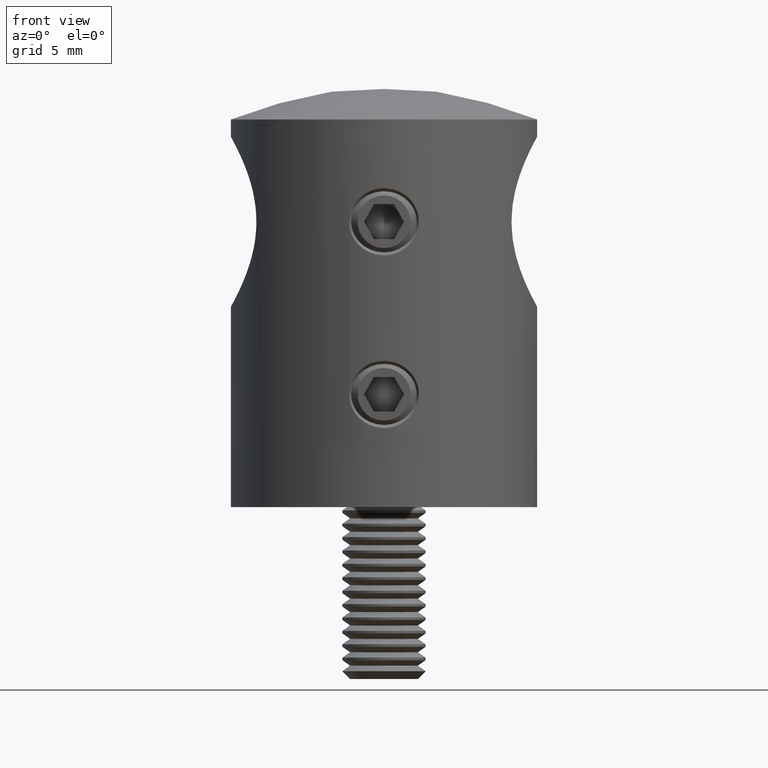
[diagram: clean part render]
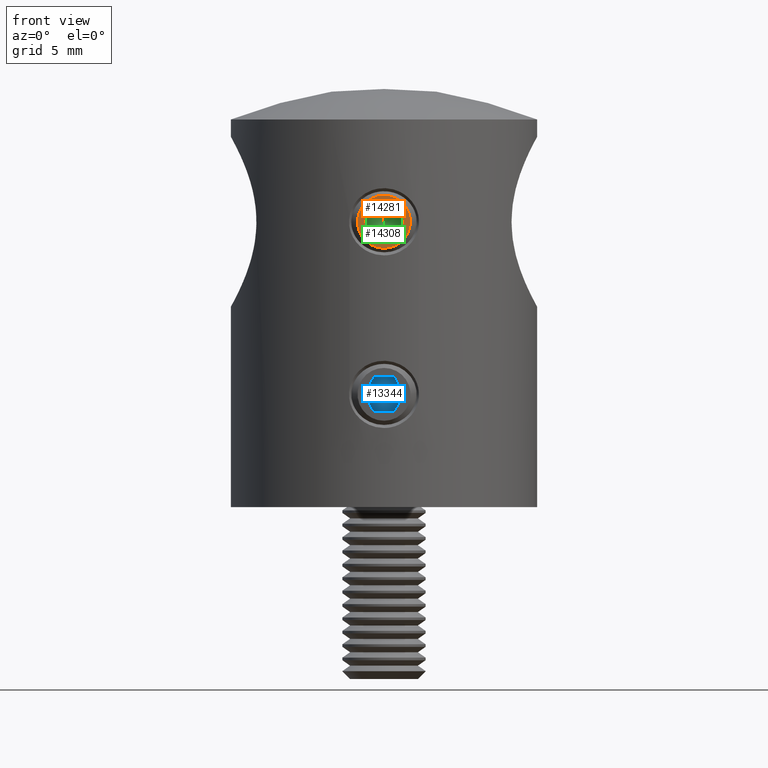
[diagram: same view with three faces highlighted in distinct colors, each labeled with its STEP entity id]
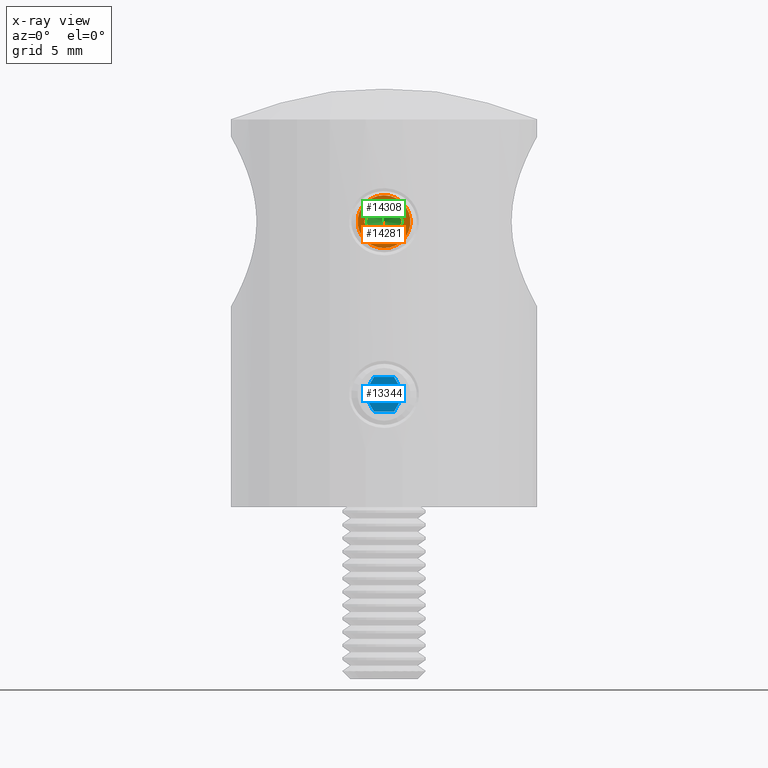
[diagram: x-ray of the same camera — body ghosted, the three highlighted faces saturated]
A machine part, front view with three faces highlighted in distinct colors.
The next image is the same camera in x-ray (body ghosted, the three faces saturated) — at least one of them is partly hidden behind the body in this view.
Their STEP definitions:

[orange] entity #14281 — the highlighted planar face has unit normal (-0, -1, 0).
#125 = DIRECTION ( 'NONE',  ( 0.0000000000000000000, 0.0000000000000000000, -1.000000000000000000 ) ) ;
#163 = DIRECTION ( 'NONE',  ( 0.0000000000000000000, 0.5000000000000000000, 0.8660254037844386000 ) ) ;
#687 = LINE ( 'NONE', #17989, #3373 ) ;
#895 = EDGE_LOOP ( 'NONE', ( #11720 ) ) ;
#1152 = FACE_BOUND ( 'NONE', #9463, .T. ) ;
#1289 = CARTESIAN_POINT ( 'NONE',  ( 5.000000000000000000, 0.7216878364870338300, 1.250000000000000400 ) ) ;
#1346 = CARTESIAN_POINT ( 'NONE',  ( 5.000000000000000000, 1.443375672974066100, 3.510950658916429000E-016 ) ) ;
#1714 = LINE ( 'NONE', #5509, #6843 ) ;
#1771 = CARTESIAN_POINT ( 'NONE',  ( 5.000000000000000000, 0.0000000000000000000, 0.0000000000000000000 ) ) ;
#2210 = FACE_OUTER_BOUND ( 'NONE', #895, .T. ) ;
#2440 = LINE ( 'NONE', #4784, #14092 ) ;
#3139 = CARTESIAN_POINT ( 'NONE',  ( 5.000000000000000000, -1.443375672974064100, 5.421010862427522200E-016 ) ) ;
#3243 = VECTOR ( 'NONE', #8235, 1000.000000000000200 ) ;
#3373 = VECTOR ( 'NONE', #16100, 1000.000000000000000 ) ;
#3385 = VECTOR ( 'NONE', #19239, 1000.000000000000000 ) ;
#4073 = CIRCLE ( 'NONE', #13066, 1.900000000000000100 ) ;
#4784 = CARTESIAN_POINT ( 'NONE',  ( 5.000000000000000000, -0.7216878364870317200, 1.250000000000000400 ) ) ;
#5055 = ORIENTED_EDGE ( 'NONE', *, *, #21640, .F. ) ;
#5109 = VERTEX_POINT ( 'NONE', #11507 ) ;
#5509 = CARTESIAN_POINT ( 'NONE',  ( 5.000000000000000000, 0.7216878364870340500, -1.249999999999998900 ) ) ;
#5520 = VERTEX_POINT ( 'NONE', #10801 ) ;
#6843 = VECTOR ( 'NONE', #163, 1000.000000000000200 ) ;
#6879 = EDGE_CURVE ( 'NONE', #16935, #22322, #12921, .T. ) ;
#7194 = ORIENTED_EDGE ( 'NONE', *, *, #12117, .F. ) ;
#7326 = CARTESIAN_POINT ( 'NONE',  ( 5.000000000000000000, 0.0000000000000000000, 0.0000000000000000000 ) ) ;
#8235 = DIRECTION ( 'NONE',  ( 0.0000000000000000000, -0.4999999999999998900, 0.8660254037844386000 ) ) ;
#9321 = ORIENTED_EDGE ( 'NONE', *, *, #10244, .F. ) ;
#9463 = EDGE_LOOP ( 'NONE', ( #10904, #13081, #10508, #7194, #9321, #5055 ) ) ;
#9552 = CARTESIAN_POINT ( 'NONE',  ( 5.000000000000000000, -0.7216878364870327200, -1.249999999999999300 ) ) ;
#9745 = CARTESIAN_POINT ( 'NONE',  ( 5.000000000000000000, 1.443375672974066100, 3.510950658916429000E-016 ) ) ;
#10189 = DIRECTION ( 'NONE',  ( 0.0000000000000000000, -0.4999999999999998900, -0.8660254037844386000 ) ) ;
#10244 = EDGE_CURVE ( 'NONE', #21003, #5109, #687, .T. ) ;
#10253 = DIRECTION ( 'NONE',  ( 1.000000000000000000, 0.0000000000000000000, 0.0000000000000000000 ) ) ;
#10508 = ORIENTED_EDGE ( 'NONE', *, *, #16008, .F. ) ;
#10801 = CARTESIAN_POINT ( 'NONE',  ( 5.000000000000000000, 0.0000000000000000000, -1.900000000000000100 ) ) ;
#10904 = ORIENTED_EDGE ( 'NONE', *, *, #18448, .F. ) ;
#11507 = CARTESIAN_POINT ( 'NONE',  ( 5.000000000000000000, 0.7216878364870340500, -1.249999999999998900 ) ) ;
#11720 = ORIENTED_EDGE ( 'NONE', *, *, #17663, .T. ) ;
#12117 = EDGE_CURVE ( 'NONE', #5109, #21463, #1714, .T. ) ;
#12416 = VERTEX_POINT ( 'NONE', #3139 ) ;
#12921 = LINE ( 'NONE', #1289, #18058 ) ;
#13066 = AXIS2_PLACEMENT_3D ( 'NONE', #1771, #10253, #125 ) ;
#13081 = ORIENTED_EDGE ( 'NONE', *, *, #6879, .F. ) ;
#14092 = VECTOR ( 'NONE', #10189, 1000.000000000000200 ) ;
#14281 = ADVANCED_FACE ( 'NONE', ( #1152, #2210 ), #17985, .T. ) ;
#14645 = LINE ( 'NONE', #9745, #3243 ) ;
#15211 = AXIS2_PLACEMENT_3D ( 'NONE', #7326, #16096, #16245 ) ;
#15716 = CARTESIAN_POINT ( 'NONE',  ( 5.000000000000000000, -1.443375672974063900, 4.248569400808785300E-016 ) ) ;
#15980 = CARTESIAN_POINT ( 'NONE',  ( 5.000000000000000000, -0.7216878364870317200, 1.250000000000000400 ) ) ;
#16008 = EDGE_CURVE ( 'NONE', #21463, #16935, #14645, .T. ) ;
#16096 = DIRECTION ( 'NONE',  ( 1.000000000000000000, 0.0000000000000000000, 0.0000000000000000000 ) ) ;
#16100 = DIRECTION ( 'NONE',  ( 0.0000000000000000000, 1.000000000000000000, 3.004629197474313600E-016 ) ) ;
#16245 = DIRECTION ( 'NONE',  ( 0.0000000000000000000, 0.0000000000000000000, -1.000000000000000000 ) ) ;
#16935 = VERTEX_POINT ( 'NONE', #19809 ) ;
#17663 = EDGE_CURVE ( 'NONE', #5520, #5520, #4073, .T. ) ;
#17985 = PLANE ( 'NONE',  #15211 ) ;
#17989 = CARTESIAN_POINT ( 'NONE',  ( 5.000000000000000000, -0.7216878364870327200, -1.249999999999999300 ) ) ;
#18058 = VECTOR ( 'NONE', #22101, 1000.000000000000000 ) ;
#18448 = EDGE_CURVE ( 'NONE', #22322, #12416, #2440, .T. ) ;
#19239 = DIRECTION ( 'NONE',  ( 0.0000000000000000000, 0.4999999999999995000, -0.8660254037844389300 ) ) ;
#19809 = CARTESIAN_POINT ( 'NONE',  ( 5.000000000000000000, 0.7216878364870338300, 1.250000000000000400 ) ) ;
#20982 = LINE ( 'NONE', #15716, #3385 ) ;
#21003 = VERTEX_POINT ( 'NONE', #9552 ) ;
#21463 = VERTEX_POINT ( 'NONE', #1346 ) ;
#21640 = EDGE_CURVE ( 'NONE', #12416, #21003, #20982, .T. ) ;
#22101 = DIRECTION ( 'NONE',  ( 0.0000000000000000000, -1.000000000000000000, 0.0000000000000000000 ) ) ;
#22322 = VERTEX_POINT ( 'NONE', #15980 ) ;

[blue] entity #13344 — the highlighted planar face has unit normal (0, -1, 0).
#344 = LINE ( 'NONE', #12696, #1133 ) ;
#1133 = VECTOR ( 'NONE', #16021, 1000.000000000000100 ) ;
#1794 = LINE ( 'NONE', #3753, #5854 ) ;
#3153 = ORIENTED_EDGE ( 'NONE', *, *, #15414, .T. ) ;
#3636 = PLANE ( 'NONE',  #20685 ) ;
#3753 = CARTESIAN_POINT ( 'NONE',  ( 3.000000000000000000, -1.443375672974064500, -3.918605484130491800E-016 ) ) ;
#4233 = DIRECTION ( 'NONE',  ( 0.0000000000000000000, 0.5000000000000001100, 0.8660254037844386000 ) ) ;
#4547 = DIRECTION ( 'NONE',  ( 0.0000000000000000000, -0.5000000000000001100, -0.8660254037844386000 ) ) ;
#4886 = CARTESIAN_POINT ( 'NONE',  ( 3.000000000000000000, 0.7216878364870326100, 1.250000000000000000 ) ) ;
#4946 = EDGE_LOOP ( 'NONE', ( #16603, #14391, #21229, #3153, #18370, #13923 ) ) ;
#5854 = VECTOR ( 'NONE', #17678, 1000.000000000000100 ) ;
#7053 = EDGE_CURVE ( 'NONE', #10747, #13678, #11564, .T. ) ;
#7076 = VERTEX_POINT ( 'NONE', #8689 ) ;
#7499 = VERTEX_POINT ( 'NONE', #14713 ) ;
#7625 = LINE ( 'NONE', #21490, #8160 ) ;
#8160 = VECTOR ( 'NONE', #4547, 1000.000000000000100 ) ;
#8265 = LINE ( 'NONE', #17504, #18535 ) ;
#8689 = CARTESIAN_POINT ( 'NONE',  ( 3.000000000000000000, 1.443375672974064800, -2.114391246060425900E-016 ) ) ;
#8888 = CARTESIAN_POINT ( 'NONE',  ( 3.000000000000000000, -0.7216878364870333900, -1.249999999999999800 ) ) ;
#9253 = DIRECTION ( 'NONE',  ( 0.0000000000000000000, -1.000000000000000000, 0.0000000000000000000 ) ) ;
#10747 = VERTEX_POINT ( 'NONE', #8888 ) ;
#10863 = VECTOR ( 'NONE', #4233, 1000.000000000000000 ) ;
#11277 = CARTESIAN_POINT ( 'NONE',  ( 3.000000000000000000, 0.7216878364870326100, -1.249999999999999800 ) ) ;
#11564 = LINE ( 'NONE', #18731, #21809 ) ;
#12696 = CARTESIAN_POINT ( 'NONE',  ( 3.000000000000000000, 1.443375672974064800, -2.114391246060425900E-016 ) ) ;
#13033 = LINE ( 'NONE', #11277, #10863 ) ;
#13344 = ADVANCED_FACE ( 'NONE', ( #16851 ), #3636, .T. ) ;
#13678 = VERTEX_POINT ( 'NONE', #21464 ) ;
#13864 = CARTESIAN_POINT ( 'NONE',  ( 3.000000000000000000, -2.165063509461096400, -1.249999999999999800 ) ) ;
#13923 = ORIENTED_EDGE ( 'NONE', *, *, #22368, .T. ) ;
#14365 = EDGE_CURVE ( 'NONE', #7076, #15828, #344, .T. ) ;
#14391 = ORIENTED_EDGE ( 'NONE', *, *, #20423, .T. ) ;
#14713 = CARTESIAN_POINT ( 'NONE',  ( 3.000000000000000000, -1.443375672974064500, -3.918605484130491800E-016 ) ) ;
#15414 = EDGE_CURVE ( 'NONE', #13678, #7076, #13033, .T. ) ;
#15828 = VERTEX_POINT ( 'NONE', #4886 ) ;
#16021 = DIRECTION ( 'NONE',  ( 0.0000000000000000000, -0.4999999999999998900, 0.8660254037844387100 ) ) ;
#16603 = ORIENTED_EDGE ( 'NONE', *, *, #19221, .T. ) ;
#16851 = FACE_OUTER_BOUND ( 'NONE', #4946, .T. ) ;
#17262 = DIRECTION ( 'NONE',  ( 0.0000000000000000000, 0.0000000000000000000, -1.000000000000000000 ) ) ;
#17504 = CARTESIAN_POINT ( 'NONE',  ( 3.000000000000000000, 0.7216878364870326100, 1.250000000000000000 ) ) ;
#17678 = DIRECTION ( 'NONE',  ( 0.0000000000000000000, 0.4999999999999996100, -0.8660254037844388200 ) ) ;
#18217 = VERTEX_POINT ( 'NONE', #18733 ) ;
#18370 = ORIENTED_EDGE ( 'NONE', *, *, #14365, .T. ) ;
#18535 = VECTOR ( 'NONE', #9253, 1000.000000000000000 ) ;
#18731 = CARTESIAN_POINT ( 'NONE',  ( 3.000000000000000000, -0.7216878364870333900, -1.249999999999999800 ) ) ;
#18733 = CARTESIAN_POINT ( 'NONE',  ( 3.000000000000000000, -0.7216878364870318300, 1.250000000000000000 ) ) ;
#19057 = DIRECTION ( 'NONE',  ( 1.000000000000000000, -0.0000000000000000000, 0.0000000000000000000 ) ) ;
#19221 = EDGE_CURVE ( 'NONE', #18217, #7499, #7625, .T. ) ;
#20423 = EDGE_CURVE ( 'NONE', #7499, #10747, #1794, .T. ) ;
#20685 = AXIS2_PLACEMENT_3D ( 'NONE', #13864, #19057, #17262 ) ;
#20762 = DIRECTION ( 'NONE',  ( 0.0000000000000000000, 1.000000000000000000, 0.0000000000000000000 ) ) ;
#21229 = ORIENTED_EDGE ( 'NONE', *, *, #7053, .T. ) ;
#21464 = CARTESIAN_POINT ( 'NONE',  ( 3.000000000000000000, 0.7216878364870326100, -1.249999999999999800 ) ) ;
#21490 = CARTESIAN_POINT ( 'NONE',  ( 3.000000000000000000, -0.7216878364870318300, 1.250000000000000000 ) ) ;
#21809 = VECTOR ( 'NONE', #20762, 1000.000000000000000 ) ;
#22368 = EDGE_CURVE ( 'NONE', #15828, #18217, #8265, .T. ) ;

[green] entity #14308 — the highlighted conical surface has half-angle 59 deg.
#1527 = CARTESIAN_POINT ( 'NONE',  ( 2.000000000000001300, 0.0000000000000000000, 5.755839955992561400E-015 ) ) ;
#2069 = DIRECTION ( 'NONE',  ( -1.000000000000000000, -0.0000000000000000000, 0.0000000000000000000 ) ) ;
#2762 = DIRECTION ( 'NONE',  ( -1.000000000000000000, -0.0000000000000000000, 0.0000000000000000000 ) ) ;
#2940 = EDGE_CURVE ( 'NONE', #17456, #7316, #20249, .T. ) ;
#3177 = DIRECTION ( 'NONE',  ( 3.469446951953599400E-016, 0.0000000000000000000, -1.000000000000000000 ) ) ;
#3883 = AXIS2_PLACEMENT_3D ( 'NONE', #12413, #19272, #8932 ) ;
#3980 = EDGE_CURVE ( 'NONE', #9301, #11694, #15427, .T. ) ;
#4483 = ORIENTED_EDGE ( 'NONE', *, *, #4877, .F. ) ;
#4877 = EDGE_CURVE ( 'NONE', #5902, #9301, #6471, .T. ) ;
#5451 = CARTESIAN_POINT ( 'NONE',  ( 2.000000000000001300, 1.082531754730553100, -0.6249999999999965600 ) ) ;
#5902 = VERTEX_POINT ( 'NONE', #15559 ) ;
#6394 = DIRECTION ( 'NONE',  ( 0.0000000000000000000, 0.0000000000000000000, 1.000000000000000000 ) ) ;
#6471 = CIRCLE ( 'NONE', #9217, 1.250000000000002900 ) ;
#6902 = CARTESIAN_POINT ( 'NONE',  ( 2.000000000000001300, 1.082531754730552600, 0.6250000000000085500 ) ) ;
#7316 = VERTEX_POINT ( 'NONE', #19374 ) ;
#7365 = EDGE_CURVE ( 'NONE', #18508, #5902, #19661, .T. ) ;
#7370 = DIRECTION ( 'NONE',  ( 0.0000000000000000000, 0.0000000000000000000, 1.000000000000000000 ) ) ;
#7450 = CARTESIAN_POINT ( 'NONE',  ( 2.000000000000000000, 0.0000000000000000000, 6.209410300080172700E-015 ) ) ;
#7747 = ORIENTED_EDGE ( 'NONE', *, *, #2940, .F. ) ;
#8232 = ORIENTED_EDGE ( 'NONE', *, *, #8383, .T. ) ;
#8383 = EDGE_CURVE ( 'NONE', #17456, #11694, #11284, .T. ) ;
#8584 = EDGE_CURVE ( 'NONE', #7316, #18508, #16663, .T. ) ;
#8932 = DIRECTION ( 'NONE',  ( 0.0000000000000000000, 0.0000000000000000000, 1.000000000000000000 ) ) ;
#8983 = CONICAL_SURFACE ( 'NONE', #20988, 1.250000000000005300, 1.029744258676652800 ) ;
#9217 = AXIS2_PLACEMENT_3D ( 'NONE', #13950, #2069, #7370 ) ;
#9301 = VERTEX_POINT ( 'NONE', #6902 ) ;
#9307 = CARTESIAN_POINT ( 'NONE',  ( 2.000000000000000000, 0.0000000000000000000, 6.209410300080172700E-015 ) ) ;
#9368 = CARTESIAN_POINT ( 'NONE',  ( 2.000000000000001300, 0.0000000000000000000, 5.755839955992561400E-015 ) ) ;
#9377 = DIRECTION ( 'NONE',  ( -1.000000000000000000, -0.0000000000000000000, 0.0000000000000000000 ) ) ;
#9855 = ORIENTED_EDGE ( 'NONE', *, *, #7365, .F. ) ;
#10926 = DIRECTION ( 'NONE',  ( 0.0000000000000000000, 0.0000000000000000000, 1.000000000000000000 ) ) ;
#10956 = DIRECTION ( 'NONE',  ( 3.469446951953599400E-016, 0.0000000000000000000, -1.000000000000000000 ) ) ;
#10979 = AXIS2_PLACEMENT_3D ( 'NONE', #7450, #21262, #10926 ) ;
#11284 = CIRCLE ( 'NONE', #17059, 1.250000000000005300 ) ;
#11391 = CARTESIAN_POINT ( 'NONE',  ( 2.000000000000000000, 0.0000000000000000000, 6.209410300080172700E-015 ) ) ;
#11694 = VERTEX_POINT ( 'NONE', #5451 ) ;
#12413 = CARTESIAN_POINT ( 'NONE',  ( 2.000000000000000000, 0.0000000000000000000, 6.209410300080172700E-015 ) ) ;
#13553 = AXIS2_PLACEMENT_3D ( 'NONE', #11391, #2762, #6394 ) ;
#13950 = CARTESIAN_POINT ( 'NONE',  ( 2.000000000000000000, 0.0000000000000000000, 6.209410300080172700E-015 ) ) ;
#14308 = ADVANCED_FACE ( 'NONE', ( #14933 ), #8983, .F. ) ;
#14933 = FACE_OUTER_BOUND ( 'NONE', #19557, .T. ) ;
#15327 = ORIENTED_EDGE ( 'NONE', *, *, #3980, .F. ) ;
#15427 = CIRCLE ( 'NONE', #13553, 1.250000000000002900 ) ;
#15559 = CARTESIAN_POINT ( 'NONE',  ( 2.000000000000000000, 0.0000000000000000000, 1.250000000000000200 ) ) ;
#16171 = DIRECTION ( 'NONE',  ( 1.000000000000000000, -0.0000000000000000000, 2.180260461768213300E-016 ) ) ;
#16663 = CIRCLE ( 'NONE', #3883, 1.250000000000002900 ) ;
#16974 = CARTESIAN_POINT ( 'NONE',  ( 2.000000000000001800, 3.755786496842908900E-016, -1.249999999999999300 ) ) ;
#17059 = AXIS2_PLACEMENT_3D ( 'NONE', #1527, #18749, #3177 ) ;
#17456 = VERTEX_POINT ( 'NONE', #16974 ) ;
#17500 = ORIENTED_EDGE ( 'NONE', *, *, #8584, .F. ) ;
#18508 = VERTEX_POINT ( 'NONE', #21514 ) ;
#18749 = DIRECTION ( 'NONE',  ( 1.000000000000000000, -0.0000000000000000000, 2.180260461768213300E-016 ) ) ;
#19272 = DIRECTION ( 'NONE',  ( -1.000000000000000000, -0.0000000000000000000, 0.0000000000000000000 ) ) ;
#19374 = CARTESIAN_POINT ( 'NONE',  ( 2.000000000000001300, -1.082531754730553300, -0.6249999999999958900 ) ) ;
#19557 = EDGE_LOOP ( 'NONE', ( #8232, #15327, #4483, #9855, #17500, #7747 ) ) ;
#19661 = CIRCLE ( 'NONE', #10979, 1.250000000000002900 ) ;
#20185 = AXIS2_PLACEMENT_3D ( 'NONE', #9307, #9377, #21447 ) ;
#20249 = CIRCLE ( 'NONE', #20185, 1.250000000000002900 ) ;
#20988 = AXIS2_PLACEMENT_3D ( 'NONE', #9368, #16171, #10956 ) ;
#21262 = DIRECTION ( 'NONE',  ( -1.000000000000000000, -0.0000000000000000000, 0.0000000000000000000 ) ) ;
#21447 = DIRECTION ( 'NONE',  ( 0.0000000000000000000, 0.0000000000000000000, 1.000000000000000000 ) ) ;
#21514 = CARTESIAN_POINT ( 'NONE',  ( 2.000000000000001300, -1.082531754730552600, 0.6250000000000086600 ) ) ;